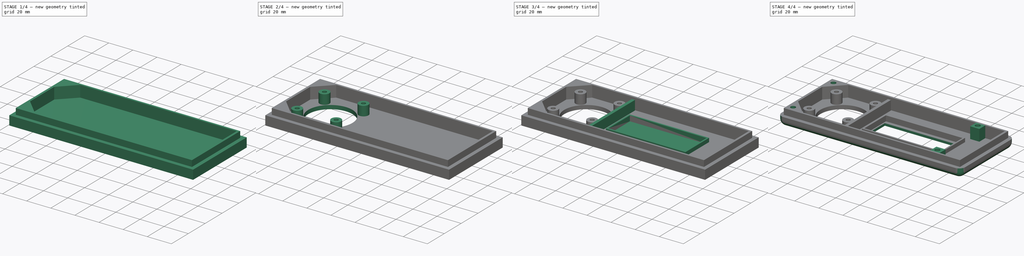
[diagram: build sequence overview — one tinted view per stage of 4, left to right]
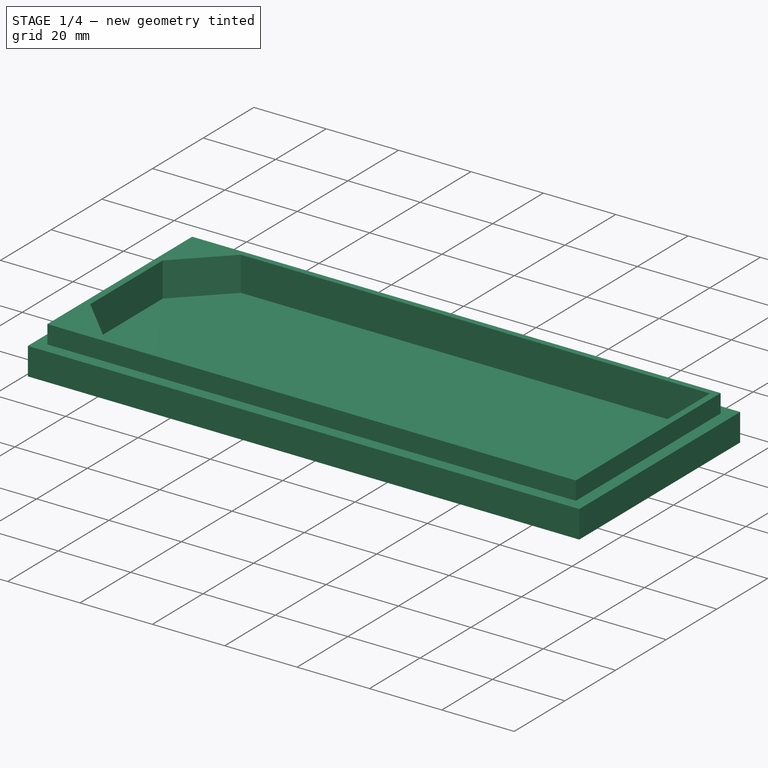
[diagram: stage 1 of 4 — iso view after this stage's code; geometry added in this stage tinted green]
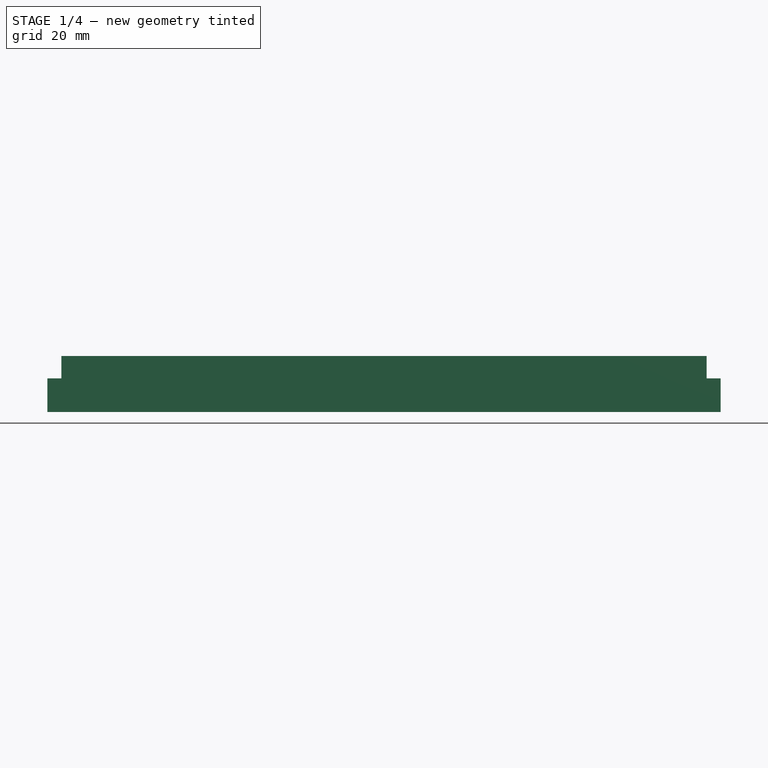
[diagram: stage 1 of 4 — front view after this stage's code; geometry added in this stage tinted green]
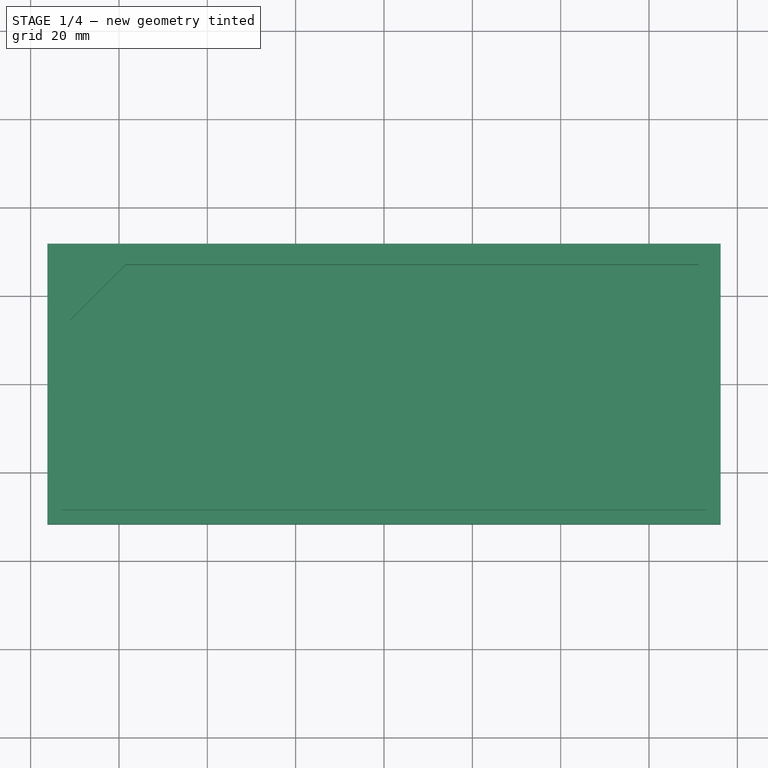
[diagram: stage 1 of 4 — top view after this stage's code; geometry added in this stage tinted green]
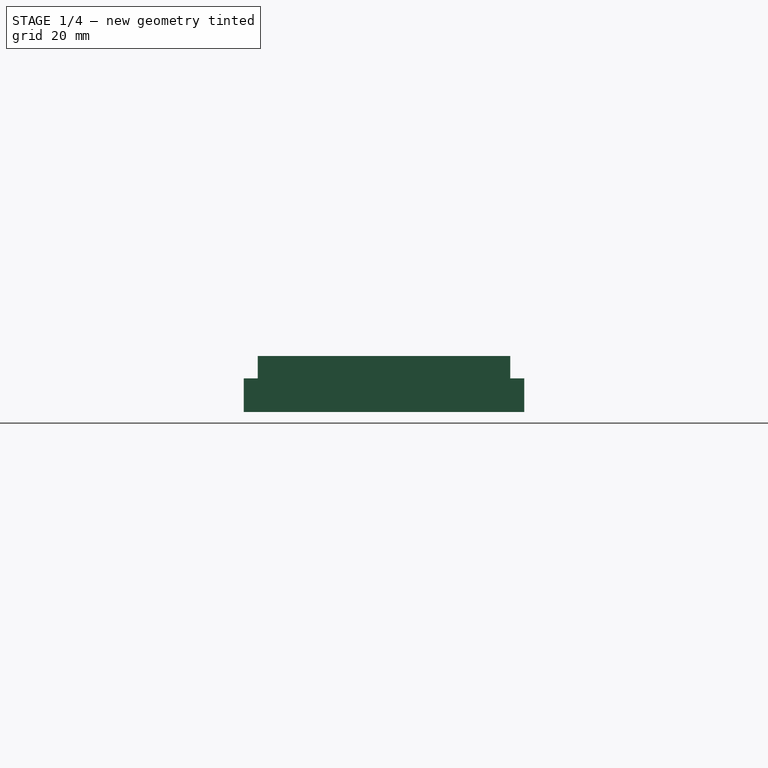
[diagram: stage 1 of 4 — right view after this stage's code; geometry added in this stage tinted green]
FCSTD DOCUMENT  (FreeCAD 1.0R39109 (Git))
Label: top
License: All rights reserved
LicenseURL: https://en.wikipedia.org/wiki/All_rights_reserved
objects: Sketcher::SketchObject×12, PartDesign::Pad×6, PartDesign::Pocket×4, PartDesign::Hole×2, PartDesign::Chamfer×1, PartDesign::Fillet×1, PartDesign::Body×1
note: 67 computed .brp shape members not serialized (recipe doc carries the construction recipe); baked Part::Feature solids carry a one-line shape summary decoded from their .brp

FEATURE [Sketcher::SketchObject] Sketch
  ArcFitTolerance = 1e-06
  AttachmentSupport = -> [XY_Plane]
  FullyConstrained = true
  MakeInternals = false
  MapMode = 5
  sketch-geometry (4):
    g0: LineSegment StartX=-76.2 StartY=31.75 StartZ=0 EndX=-76.2 EndY=-31.75 EndZ=0
    g1: LineSegment StartX=-76.2 StartY=-31.75 StartZ=0 EndX=76.2 EndY=-31.75 EndZ=0
    g2: LineSegment StartX=76.2 StartY=-31.75 StartZ=0 EndX=76.2 EndY=31.75 EndZ=0
    g3: LineSegment StartX=76.2 StartY=31.75 StartZ=0 EndX=-76.2 EndY=31.75 EndZ=0
  constraints (11):
    c: Coincident(g0,g1)
    c: Coincident(g1,g2)
    c: Coincident(g2,g3)
    c: Coincident(g3,g0)
    c: Vertical(g0)
    c: Vertical(g2)
    c: Horizontal(g1)
    c: Horizontal(g3)
    c: Distance(g0,g2) = 152.4
    c: Distance(g1,g3) = 63.5
    c: Symmetric(g0,g2,g-1)
FEATURE [PartDesign::Pad] Pad  label="Main Body"
  Direction = (0,0,1)
  Length = 7.62
  Length2 = 10
  Profile = -> Sketch
  ReferenceAxis = -> Sketch [N_Axis]
  Refine = true
  Suppressed = false
  Type = 0
FEATURE [Sketcher::SketchObject] Sketch001
  ArcFitTolerance = 1e-06
  AttachmentSupport = -> [XY_Plane]
  FullyConstrained = true
  MakeInternals = false
  MapMode = 5
  sketch-geometry (4):
    g0: LineSegment StartX=-73.025 StartY=28.575 StartZ=0 EndX=-73.025 EndY=-28.575 EndZ=0
    g1: LineSegment StartX=-73.025 StartY=-28.575 StartZ=0 EndX=73.025 EndY=-28.575 EndZ=0
    g2: LineSegment StartX=73.025 StartY=-28.575 StartZ=0 EndX=73.025 EndY=28.575 EndZ=0
    g3: LineSegment StartX=73.025 StartY=28.575 StartZ=0 EndX=-73.025 EndY=28.575 EndZ=0
  constraints (11):
    c: Coincident(g0,g1)
    c: Coincident(g1,g2)
    c: Coincident(g2,g3)
    c: Coincident(g3,g0)
    c: Vertical(g0)
    c: Vertical(g2)
    c: Horizontal(g1)
    c: Horizontal(g3)
    c: Distance(g3,g3) = 146.05
    c: Distance(g0,g0) = 57.15
    c: Symmetric(g0,g1,g-1)
FEATURE [PartDesign::Pad] Pad001  label="Lip"
  BaseFeature = -> Pad
  Direction = (0,0,1)
  Length = 12.7
  Length2 = 10
  Profile = -> Sketch001
  ReferenceAxis = -> Sketch001 [N_Axis]
  Refine = true
  Suppressed = false
  Type = 0
FEATURE [Sketcher::SketchObject] Sketch002
  ArcFitTolerance = 1e-06
  AttachmentOffset = pos=(0,0,12.7) rot=(0,0,1;0rad)
  AttachmentSupport = -> [XY_Plane]
  FullyConstrained = true
  MakeInternals = false
  MapMode = 5
  Placement = pos=(0,0,12.7) rot=(0,0,1;0rad)
  sketch-geometry (4):
    g0: LineSegment StartX=-71.1835 StartY=26.9875 StartZ=0 EndX=-71.1835 EndY=-26.9875 EndZ=0
    g1: LineSegment StartX=-71.1835 StartY=-26.9875 StartZ=0 EndX=71.1835 EndY=-26.9875 EndZ=0
    g2: LineSegment StartX=71.1835 StartY=-26.9875 StartZ=0 EndX=71.1835 EndY=26.9875 EndZ=0
    g3: LineSegment StartX=71.1835 StartY=26.9875 StartZ=0 EndX=-71.1835 EndY=26.9875 EndZ=0
  constraints (11):
    c: Coincident(g0,g1)
    c: Coincident(g1,g2)
    c: Coincident(g2,g3)
    c: Coincident(g3,g0)
    c: Vertical(g0)
    c: Vertical(g2)
    c: Horizontal(g1)
    c: Horizontal(g3)
    c: Distance(g0,g2) = 142.367
    c: Distance(g1,g3) = 53.975
    c: Symmetric(g0,g1,g-1)
FEATURE [PartDesign::Pocket] Pocket  label="Main Pocket"
  BaseFeature = -> Pad001
  Direction = (0,0,-1)
  Length = 9.525
  Length2 = 5
  Profile = -> Sketch002
  ReferenceAxis = -> Sketch002 [N_Axis]
  Refine = true
  Suppressed = false
  Type = 0
FEATURE [PartDesign::Chamfer] Chamfer
  Angle = 45
  Base = -> Pocket [Edge29,Edge30]
  BaseFeature = -> Pocket
  ChamferType = 0
  FlipDirection = false
  Refine = true
  Size = 12.7
  Size2 = 1
  SupportTransform = false
  Suppressed = false
  UseAllEdges = false
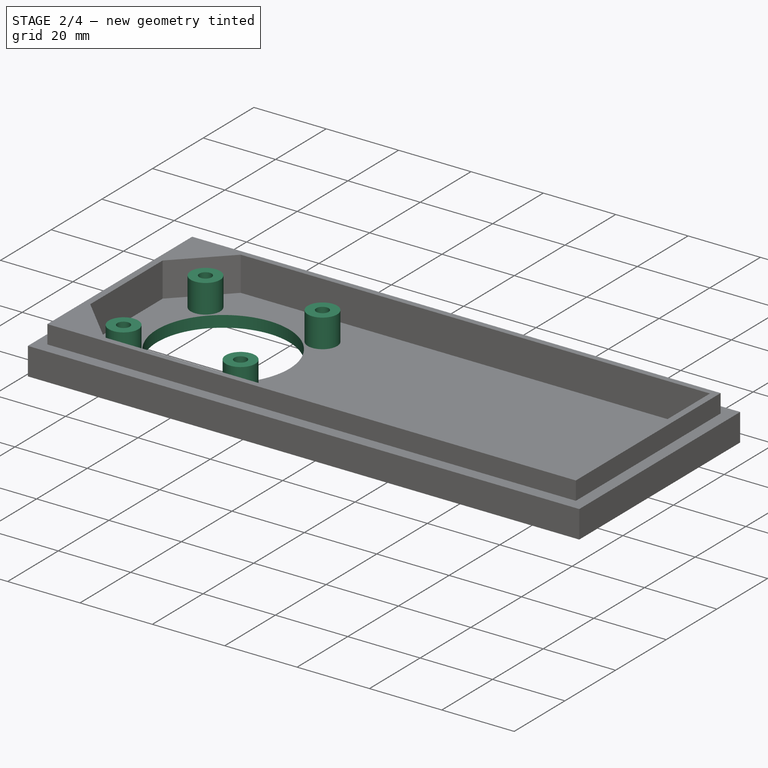
[diagram: stage 2 of 4 — iso view after this stage's code; geometry added in this stage tinted green]
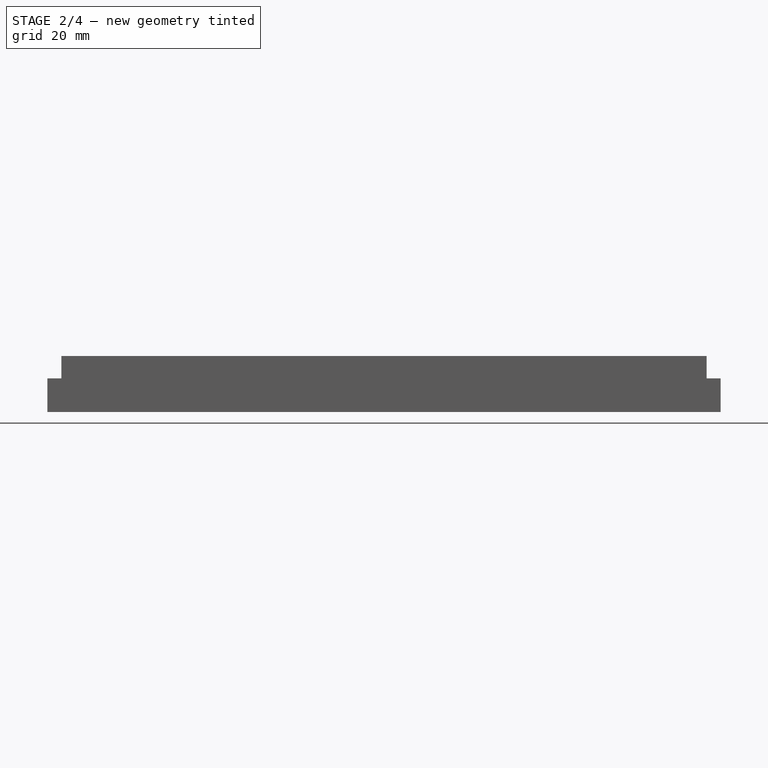
[diagram: stage 2 of 4 — front view after this stage's code; geometry added in this stage tinted green]
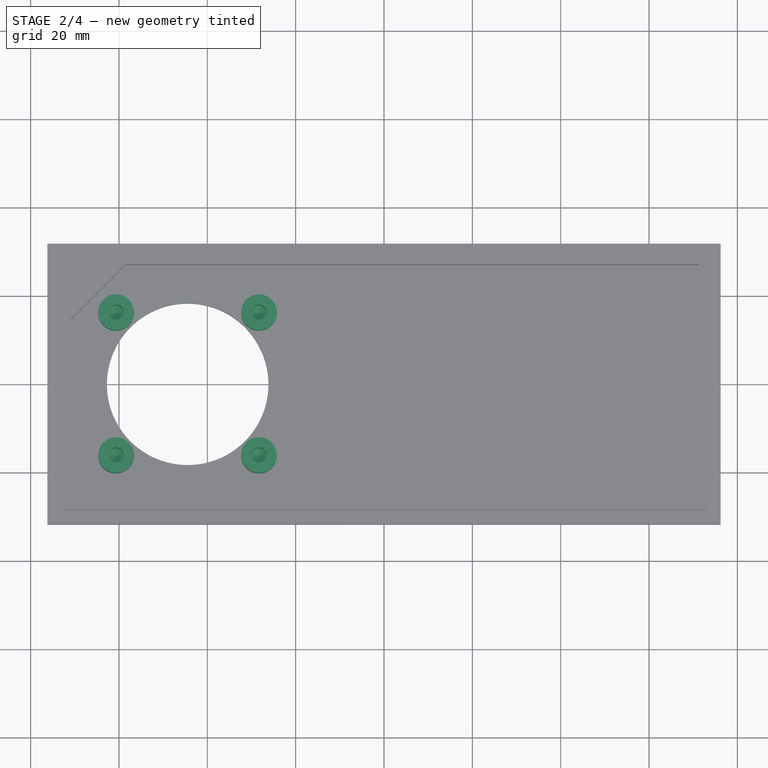
[diagram: stage 2 of 4 — top view after this stage's code; geometry added in this stage tinted green]
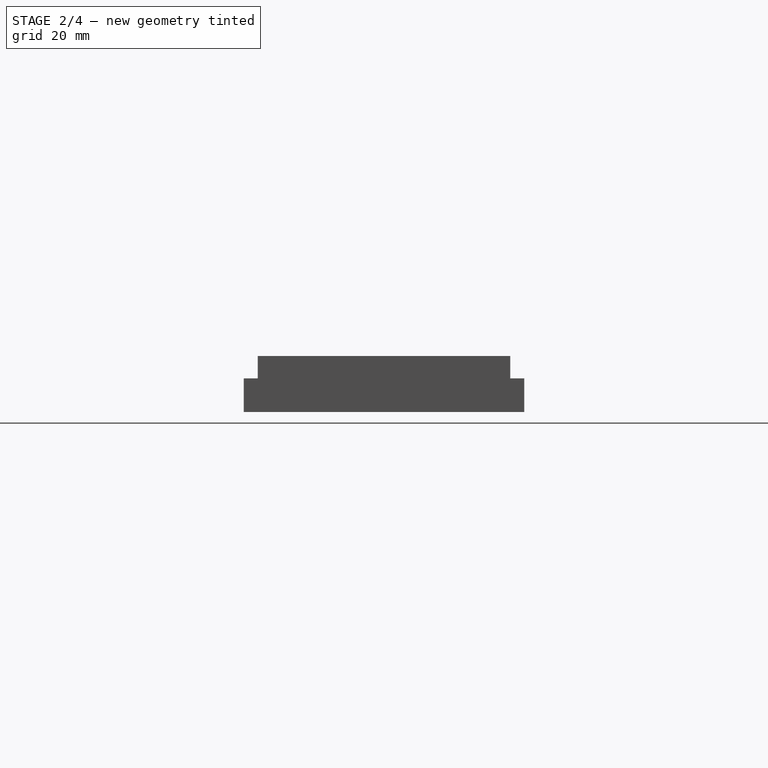
[diagram: stage 2 of 4 — right view after this stage's code; geometry added in this stage tinted green]
FEATURE [Sketcher::SketchObject] Sketch003  label="Button Hole001"
  ArcFitTolerance = 1e-06
  AttachmentOffset = pos=(0,0,25.4) rot=(0,0,1;0rad)
  AttachmentSupport = -> [XY_Plane]
  FullyConstrained = true
  MakeInternals = false
  MapMode = 5
  Placement = pos=(0,0,25.4) rot=(0,0,1;0rad)
  sketch-geometry (1):
    g0: Circle CenterX=-44.45 CenterY=0 CenterZ=0 NormalX=0 NormalY=0 NormalZ=1 AngleXU=0 Radius=18.288
  constraints (3):
    c: DistanceX(g0,g-1) = 44.45
    c: Diameter(g0) = 36.576
    c: DistanceY(g0,g-1) = 0
FEATURE [PartDesign::Pocket] Pocket001  label="Button Hole"
  BaseFeature = -> Chamfer
  Direction = (0,0,-1)
  Length = 5
  Length2 = 5
  Profile = -> Sketch003
  ReferenceAxis = -> Sketch003 [N_Axis]
  Refine = true
  Suppressed = false
  Type = 1
FEATURE [Sketcher::SketchObject] Sketch004
  ArcFitTolerance = 1e-06
  AttachmentSupport = -> [XY_Plane]
  FullyConstrained = true
  MakeInternals = false
  MapMode = 5
  sketch-geometry (4):
    g0: Circle CenterX=-60.6552 CenterY=-16.1671 CenterZ=0 NormalX=0 NormalY=0 NormalZ=1 AngleXU=0 Radius=4.064
    g1: Circle CenterX=-28.321 CenterY=-16.1671 CenterZ=0 NormalX=0 NormalY=0 NormalZ=1 AngleXU=0 Radius=4.064
    g2: Circle CenterX=-28.321 CenterY=16.1671 CenterZ=0 NormalX=0 NormalY=0 NormalZ=1 AngleXU=0 Radius=4.064
    g3: Circle CenterX=-60.6552 CenterY=16.1671 CenterZ=0 NormalX=0 NormalY=0 NormalZ=1 AngleXU=0 Radius=4.064
  constraints (12):
    c: Diameter(g3) = 8.128
    c: Diameter(g0) = 8.128
    c: Diameter(g1) = 8.128
    c: Diameter(g2) = 8.128
    c: DistanceX(g0,g1) = 32.3342
    c: DistanceX(g3,g2) = 32.3342
    c: DistanceX(g3,g0) = 0
    c: DistanceY(g0,g3) = 32.3342
    c: DistanceY(g1,g0) = 0
    c: DistanceY(g1,g2) = 32.3342
    c: DistanceY(g1,g-1) = 16.1671
    c: DistanceX(g1,g-1) = 28.321
FEATURE [PartDesign::Pad] Pad002  label="Button Standoffs"
  BaseFeature = -> Pocket001
  Direction = (0,0,1)
  Length = 11.0744
  Length2 = 10
  Profile = -> Sketch004
  ReferenceAxis = -> Sketch004 [N_Axis]
  Refine = true
  Suppressed = false
  Type = 0
FEATURE [Sketcher::SketchObject] Sketch006
  ArcFitTolerance = 1e-06
  AttachmentSupport = -> [XY_Plane]
  FullyConstrained = true
  MakeInternals = false
  MapMode = 5
  sketch-geometry (4):
    g0: LineSegment StartX=-22.86 StartY=26.67 StartZ=0 EndX=-22.86 EndY=-26.67 EndZ=0
    g1: LineSegment StartX=-22.86 StartY=-26.67 StartZ=0 EndX=-25.4 EndY=-26.67 EndZ=0
    g2: LineSegment StartX=-25.4 StartY=-26.67 StartZ=0 EndX=-25.4 EndY=26.67 EndZ=0
    g3: LineSegment StartX=-25.4 StartY=26.67 StartZ=0 EndX=-22.86 EndY=26.67 EndZ=0
  constraints (12):
    c: Coincident(g0,g1)
    c: Coincident(g1,g2)
    c: Coincident(g2,g3)
    c: Coincident(g3,g0)
    c: Vertical(g0)
    c: Vertical(g2)
    c: Horizontal(g1)
    c: Horizontal(g3)
    c: Distance(g1,g1) = 2.54
    c: Distance(g0,g0) = 53.34
    c: DistanceY(g1,g-1) = 26.67
    c: DistanceX(g1,g-1) = 25.4
FEATURE [Sketcher::SketchObject] Sketch008
  ArcFitTolerance = 1e-06
  AttachmentSupport = -> [XY_Plane]
  FullyConstrained = true
  MakeInternals = false
  MapMode = 5
  sketch-geometry (4):
    g0: LineSegment StartX=-18.542 StartY=-13.97 StartZ=0 EndX=47.498 EndY=-13.97 EndZ=0
    g1: LineSegment StartX=47.498 StartY=-13.97 StartZ=0 EndX=47.498 EndY=13.97 EndZ=0
    g2: LineSegment StartX=47.498 StartY=13.97 StartZ=0 EndX=-18.542 EndY=13.97 EndZ=0
    g3: LineSegment StartX=-18.542 StartY=13.97 StartZ=0 EndX=-18.542 EndY=-13.97 EndZ=0
  constraints (12):
    c: Coincident(g0,g1)
    c: Coincident(g1,g2)
    c: Coincident(g2,g3)
    c: Coincident(g3,g0)
    c: Horizontal(g0)
    c: Horizontal(g2)
    c: Vertical(g1)
    c: Vertical(g3)
    c: Distance(g0,g0) = 66.04
    c: Distance(g1,g1) = 27.94
    c: DistanceY(g0,g-1) = 13.97
    c: DistanceX(g-1,g0) = 47.498
FEATURE [Sketcher::SketchObject] Sketch009
  ArcFitTolerance = 1e-06
  AttachmentOffset = pos=(0,0,6.35) rot=(0,0,1;0rad)
  AttachmentSupport = -> [XY_Plane]
  FullyConstrained = true
  MakeInternals = false
  MapMode = 5
  Placement = pos=(0,0,6.35) rot=(0,0,1;0rad)
  sketch-geometry (4):
    g0: LineSegment StartX=-17.272 StartY=-12.7 StartZ=0 EndX=46.228 EndY=-12.7 EndZ=0
    g1: LineSegment StartX=46.228 StartY=-12.7 StartZ=0 EndX=46.228 EndY=12.7 EndZ=0
    g2: LineSegment StartX=46.228 StartY=12.7 StartZ=0 EndX=-17.272 EndY=12.7 EndZ=0
    g3: LineSegment StartX=-17.272 StartY=12.7 StartZ=0 EndX=-17.272 EndY=-12.7 EndZ=0
  constraints (12):
    c: Coincident(g0,g1)
    c: Coincident(g1,g2)
    c: Coincident(g2,g3)
    c: Coincident(g3,g0)
    c: Horizontal(g0)
    c: Horizontal(g2)
    c: Vertical(g1)
    c: Vertical(g3)
    c: Distance(g0,g0) = 63.5
    c: Distance(g1,g1) = 25.4
    c: DistanceY(g0,g-1) = 12.7
    c: DistanceX(g-1,g0) = 46.228
FEATURE [Sketcher::SketchObject] Sketch005
  ArcFitTolerance = 1e-06
  AttachmentOffset = pos=(0,0,12.7) rot=(0,0,1;0rad)
  AttachmentSupport = -> [XY_Plane]
  FullyConstrained = true
  MakeInternals = false
  MapMode = 5
  Placement = pos=(0,0,12.7) rot=(0,0,1;0rad)
  sketch-geometry (4):
    g0: Circle CenterX=-60.6552 CenterY=-16.1671 CenterZ=0 NormalX=0 NormalY=0 NormalZ=1 AngleXU=0 Radius=1.27
    g1: Circle CenterX=-28.321 CenterY=-16.1671 CenterZ=0 NormalX=0 NormalY=0 NormalZ=1 AngleXU=0 Radius=1.27
    g2: Circle CenterX=-28.321 CenterY=16.1671 CenterZ=0 NormalX=0 NormalY=0 NormalZ=1 AngleXU=0 Radius=1.27
    g3: Circle CenterX=-60.6552 CenterY=16.1671 CenterZ=0 NormalX=0 NormalY=0 NormalZ=1 AngleXU=0 Radius=1.27
  constraints (12):
    c: Diameter(g0) = 2.54
    c: Diameter(g1) = 2.54
    c: Diameter(g2) = 2.54
    c: Diameter(g3) = 2.54
    c: DistanceX(g0,g1) = 32.3342
    c: DistanceX(g3,g2) = 32.3342
    c: DistanceX(g0,g3) = 0
    c: DistanceY(g0,g3) = 32.3342
    c: DistanceY(g1,g2) = 32.3342
    c: DistanceY(g1,g0) = 0
    c: DistanceY(g1,g-1) = 16.1671
    c: DistanceX(g1,g-1) = 28.321
FEATURE [PartDesign::Hole] Hole  label="Button Screw holes"
  BaseFeature = -> Pad002
  CustomThreadClearance = 0
  Depth = 10.16
  DepthType = 0
  Diameter = 3.429
  DrillForDepth = false
  DrillPoint = 1
  DrillPointAngle = 118
  HoleCutCountersinkAngle = 90
  HoleCutCustomValues = false
  HoleCutDepth = 0
  HoleCutDiameter = 0
  HoleCutType = 0
  ModelThread = false
  Profile = -> Sketch005
  Refine = true
  Suppressed = false
  Tapered = false
  TaperedAngle = 90
  ThreadClass = 0
  ThreadDepth = 10.16
  ThreadDepthType = 0
  ThreadDirection = 0
  ThreadFit = 0
  ThreadSize = 0
  ThreadType = 0
  Threaded = false
  UseCustomThreadClearance = false
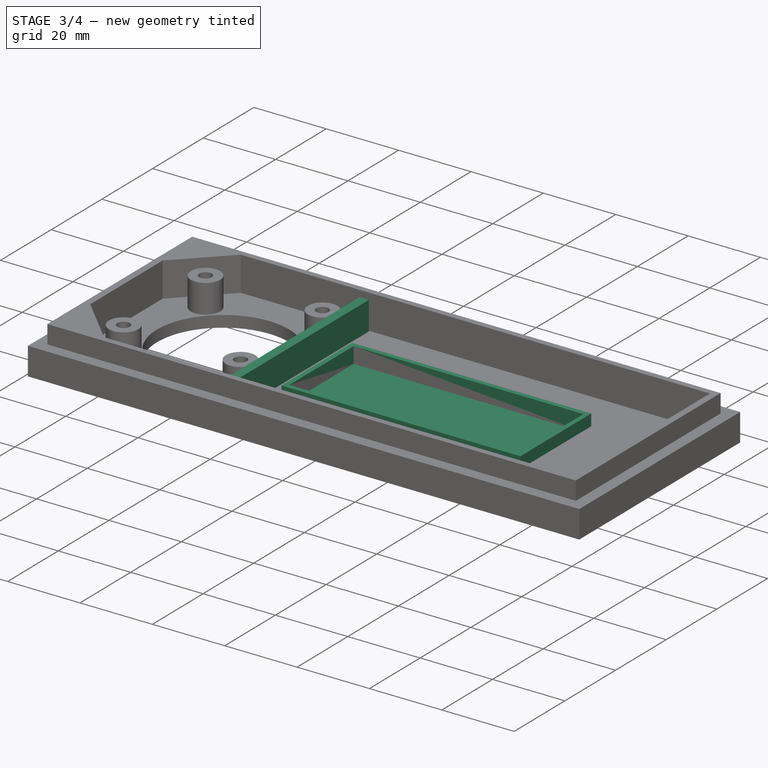
[diagram: stage 3 of 4 — iso view after this stage's code; geometry added in this stage tinted green]
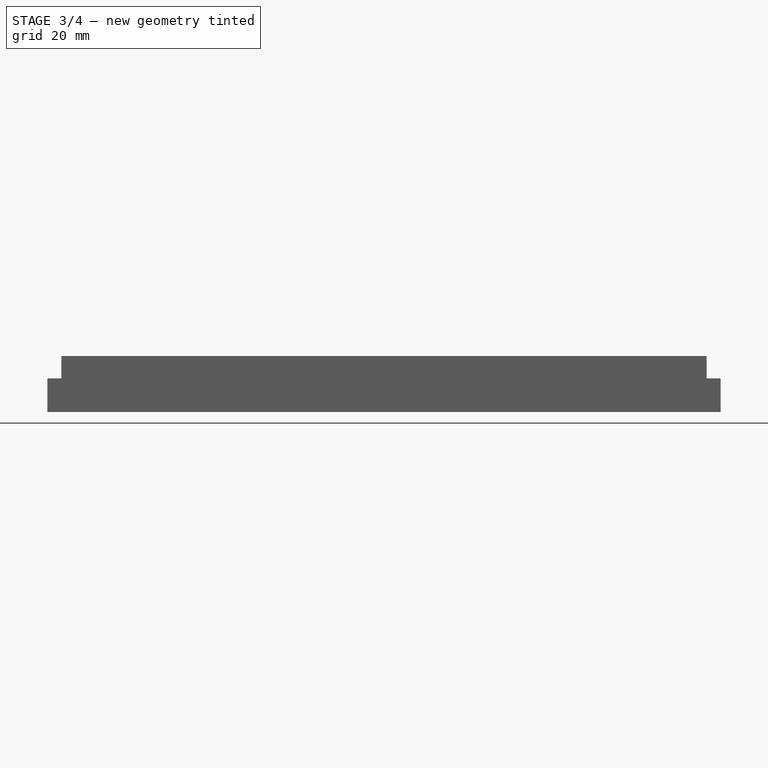
[diagram: stage 3 of 4 — front view after this stage's code; geometry added in this stage tinted green]
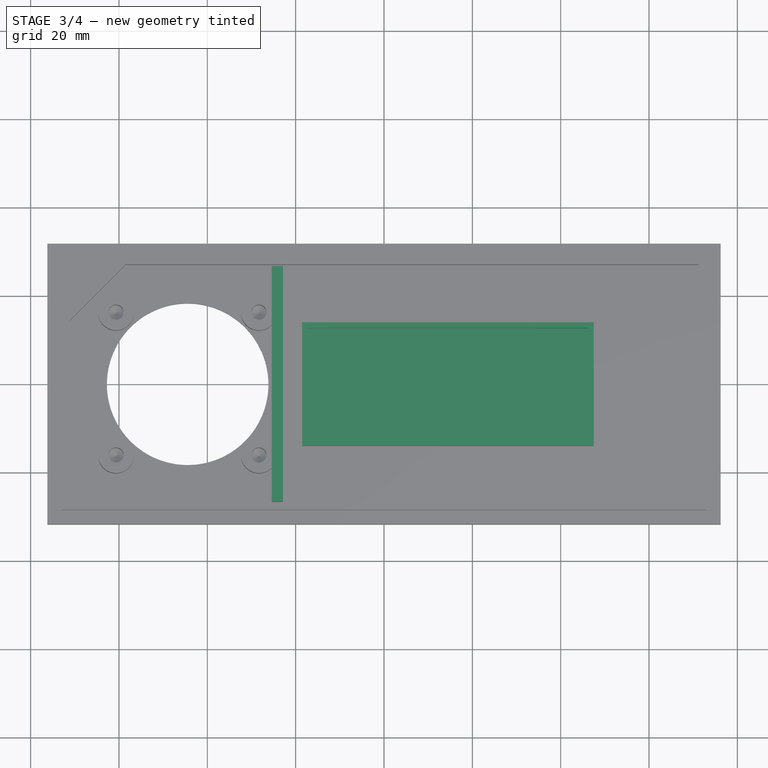
[diagram: stage 3 of 4 — top view after this stage's code; geometry added in this stage tinted green]
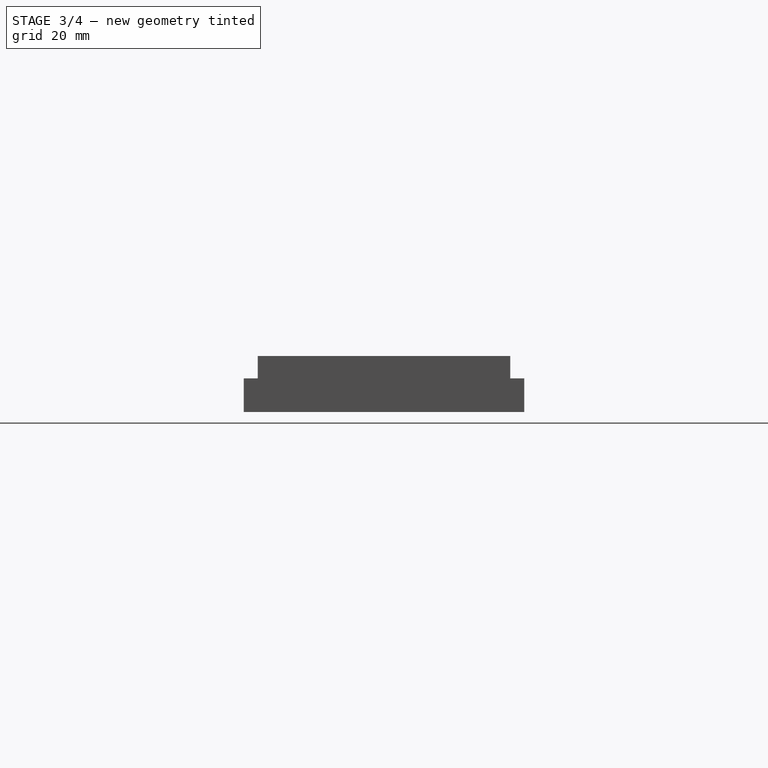
[diagram: stage 3 of 4 — right view after this stage's code; geometry added in this stage tinted green]
FEATURE [PartDesign::Pad] Pad003  label="Light Baffle"
  BaseFeature = -> Hole
  Direction = (0,0,1)
  Length = 11.0744
  Length2 = 10
  Profile = -> Sketch006
  ReferenceAxis = -> Sketch006 [N_Axis]
  Refine = true
  Suppressed = false
  Type = 0
FEATURE [PartDesign::Pad] Pad004  label="Red Plexi pad"
  BaseFeature = -> Pad003
  Direction = (0,0,1)
  Length = 6.35
  Length2 = 10
  Profile = -> Sketch008
  ReferenceAxis = -> Sketch008 [N_Axis]
  Refine = true
  Suppressed = false
  Type = 0
FEATURE [PartDesign::Pocket] Pocket003  label="Red Plexi pocket"
  BaseFeature = -> Pad004
  Direction = (0,0,-1)
  Length = 4.445
  Length2 = 5
  Profile = -> Sketch009
  ReferenceAxis = -> Sketch009 [N_Axis]
  Refine = true
  Suppressed = false
  Type = 0
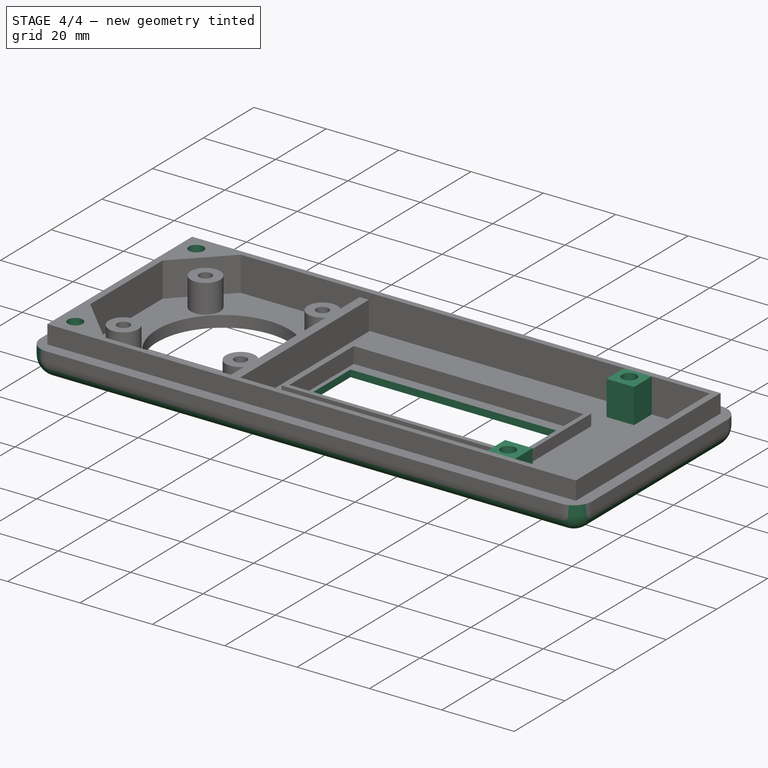
[diagram: stage 4 of 4 — iso view after this stage's code; geometry added in this stage tinted green]
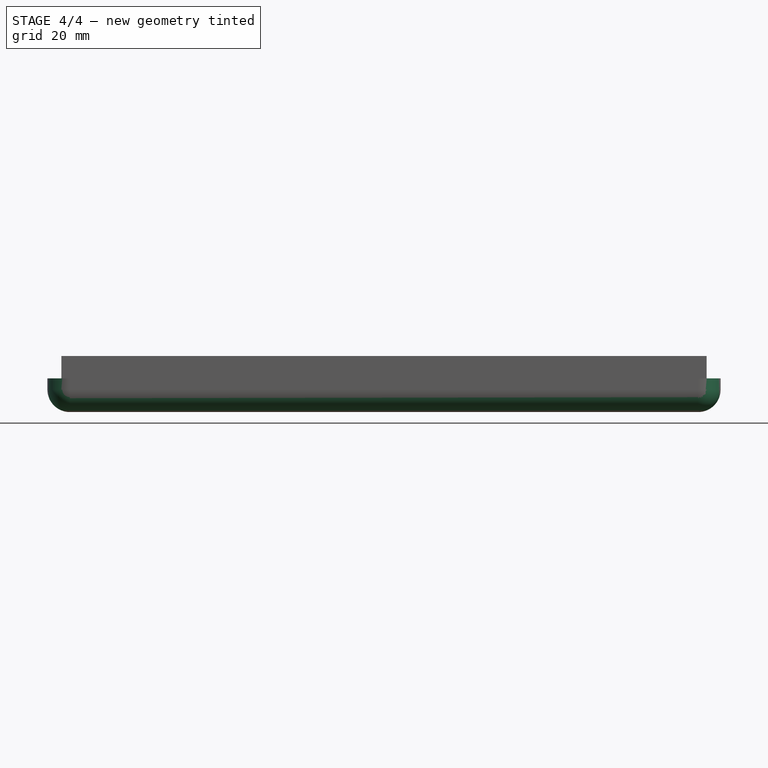
[diagram: stage 4 of 4 — front view after this stage's code; geometry added in this stage tinted green]
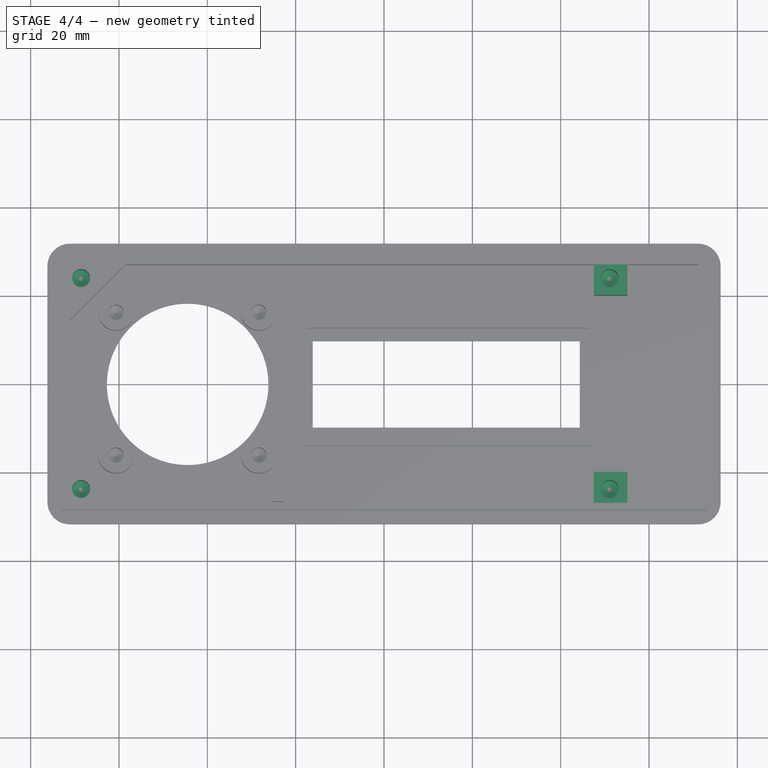
[diagram: stage 4 of 4 — top view after this stage's code; geometry added in this stage tinted green]
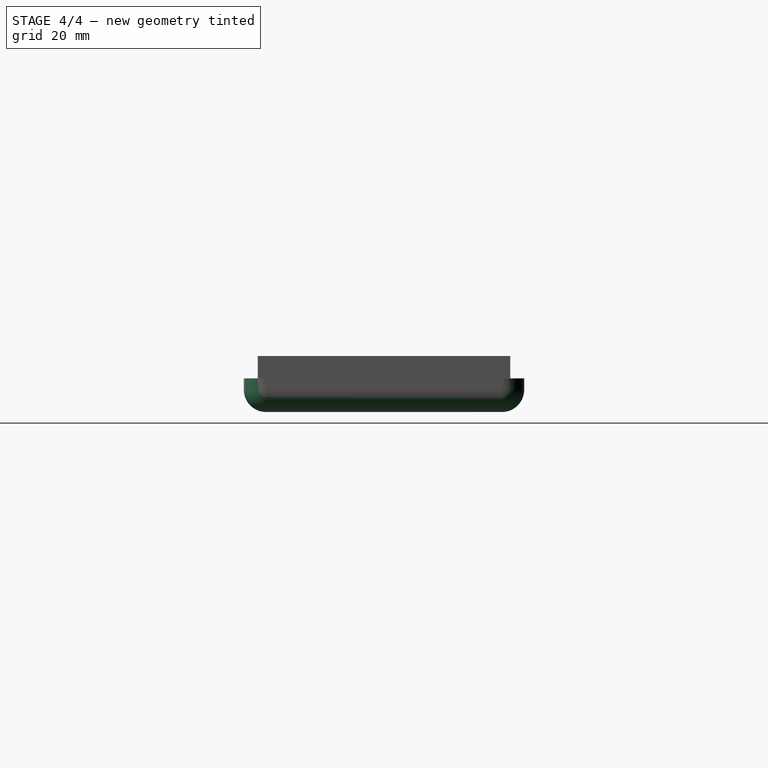
[diagram: stage 4 of 4 — right view after this stage's code; geometry added in this stage tinted green]
FEATURE [Sketcher::SketchObject] Sketch010
  ArcFitTolerance = 1e-06
  AttachmentOffset = pos=(0,0,12.7) rot=(0,0,1;0rad)
  AttachmentSupport = -> [XY_Plane]
  FullyConstrained = true
  MakeInternals = false
  MapMode = 5
  Placement = pos=(0,0,12.7) rot=(0,0,1;0rad)
  sketch-geometry (4):
    g0: LineSegment StartX=-16.129 StartY=-9.8044 StartZ=0 EndX=44.323 EndY=-9.8044 EndZ=0
    g1: LineSegment StartX=44.323 StartY=-9.8044 StartZ=0 EndX=44.323 EndY=9.8044 EndZ=0
    g2: LineSegment StartX=44.323 StartY=9.8044 StartZ=0 EndX=-16.129 EndY=9.8044 EndZ=0
    g3: LineSegment StartX=-16.129 StartY=9.8044 StartZ=0 EndX=-16.129 EndY=-9.8044 EndZ=0
  constraints (12):
    c: Coincident(g0,g1)
    c: Coincident(g1,g2)
    c: Coincident(g2,g3)
    c: Coincident(g3,g0)
    c: Horizontal(g0)
    c: Horizontal(g2)
    c: Vertical(g1)
    c: Vertical(g3)
    c: Distance(g3,g3) = 19.6088
    c: Distance(g0,g0) = 60.452
    c: DistanceY(g0,g-1) = 9.8044
    c: DistanceX(g-1,g0) = 44.323
FEATURE [PartDesign::Pocket] Pocket004  label="Window"
  BaseFeature = -> Pocket003
  Direction = (0,0,-1)
  Length = 5
  Length2 = 5
  Profile = -> Sketch010
  ReferenceAxis = -> Sketch010 [N_Axis]
  Refine = true
  Suppressed = false
  Type = 1
FEATURE [Sketcher::SketchObject] Sketch011
  ArcFitTolerance = 1e-06
  AttachmentSupport = -> [XY_Plane]
  FullyConstrained = true
  MakeInternals = false
  MapMode = 5
  sketch-geometry (8):
    g0: LineSegment StartX=47.4726 StartY=27.6225 StartZ=0 EndX=47.4726 EndY=20.0025 EndZ=0
    g1: LineSegment StartX=47.4726 StartY=20.0025 StartZ=0 EndX=55.0926 EndY=20.0025 EndZ=0
    g2: LineSegment StartX=55.0926 StartY=20.0025 StartZ=0 EndX=55.0926 EndY=27.6225 EndZ=0
    g3: LineSegment StartX=55.0926 StartY=27.6225 StartZ=0 EndX=47.4726 EndY=27.6225 EndZ=0
    g4: LineSegment StartX=47.4726 StartY=-20.0025 StartZ=0 EndX=47.4726 EndY=-27.6225 EndZ=0
    g5: LineSegment StartX=47.4726 StartY=-27.6225 StartZ=0 EndX=55.0926 EndY=-27.6225 EndZ=0
    g6: LineSegment StartX=55.0926 StartY=-27.6225 StartZ=0 EndX=55.0926 EndY=-20.0025 EndZ=0
    g7: LineSegment StartX=55.0926 StartY=-20.0025 StartZ=0 EndX=47.4726 EndY=-20.0025 EndZ=0
  constraints (24):
    c: Coincident(g0,g1)
    c: Coincident(g1,g2)
    c: Coincident(g2,g3)
    c: Coincident(g3,g0)
    c: Vertical(g0)
    c: Vertical(g2)
    c: Horizontal(g1)
    c: Horizontal(g3)
    c: Coincident(g4,g5)
    c: Coincident(g5,g6)
    c: Coincident(g6,g7)
    c: Coincident(g7,g4)
    c: Vertical(g4)
    c: Vertical(g6)
    c: Horizontal(g5)
    c: Horizontal(g7)
    c: Distance(g5,g5) = 7.62
    c: DistanceY(g6,g6) = 7.62
    c: Distance(g1,g1) = 7.62
    c: DistanceY(g2,g2) = 7.62
    c: DistanceX(g-1,g0) = 47.4726
    c: DistanceX(g-1,g4) = 47.4726
    c: DistanceY(g-1,g0) = 20.0025
    c: DistanceY(g4,g-1) = 20.0025
FEATURE [PartDesign::Pad] Pad005  label="Case Screw Piller"
  BaseFeature = -> Pocket004
  Direction = (0,0,1)
  Length = 12.7
  Length2 = 10
  Profile = -> Sketch011
  ReferenceAxis = -> Sketch011 [N_Axis]
  Refine = true
  Suppressed = false
  Type = 0
FEATURE [Sketcher::SketchObject] Sketch012
  ArcFitTolerance = 1e-06
  AttachmentOffset = pos=(0,0,12.7) rot=(0,0,1;0rad)
  AttachmentSupport = -> [XY_Plane]
  FullyConstrained = true
  MakeInternals = false
  MapMode = 5
  Placement = pos=(0,0,12.7) rot=(0,0,1;0rad)
  sketch-geometry (4):
    g0: Circle CenterX=-68.58 CenterY=23.876 CenterZ=0 NormalX=0 NormalY=0 NormalZ=1 AngleXU=0 Radius=1.9812
    g1: Circle CenterX=-68.58 CenterY=-23.876 CenterZ=0 NormalX=0 NormalY=0 NormalZ=1 AngleXU=0 Radius=1.9812
    g2: Circle CenterX=51.054 CenterY=23.876 CenterZ=0 NormalX=0 NormalY=0 NormalZ=1 AngleXU=0 Radius=1.9812
    g3: Circle CenterX=51.054 CenterY=-23.876 CenterZ=0 NormalX=0 NormalY=0 NormalZ=1 AngleXU=0 Radius=1.9812
  constraints (12):
    c: Diameter(g0) = 3.9624
    c: Diameter(g1) = 3.9624
    c: Diameter(g2) = 3.9624
    c: Diameter(g3) = 3.9624
    c: DistanceY(g1,g3) = 0
    c: DistanceY(g2,g0) = 0
    c: DistanceY(g1,g-1) = 23.876
    c: DistanceY(g-1,g0) = 23.876
    c: DistanceX(g0,g1) = 0
    c: DistanceX(g3,g2) = 0
    c: DistanceX(g1,g-1) = 68.58
    c: DistanceX(g0,g2) = 119.634
FEATURE [PartDesign::Hole] Hole001  label="Case Screw inserts"
  BaseFeature = -> Pad005
  CustomThreadClearance = 0
  Depth = 11.43
  DepthType = 0
  Diameter = 4.064
  DrillForDepth = false
  DrillPoint = 1
  DrillPointAngle = 118
  HoleCutCountersinkAngle = 90
  HoleCutCustomValues = false
  HoleCutDepth = 0
  HoleCutDiameter = 4.064
  HoleCutType = 0
  ModelThread = false
  Profile = -> Sketch012
  Refine = true
  Suppressed = false
  Tapered = false
  TaperedAngle = 90
  ThreadClass = 0
  ThreadDepth = 11.43
  ThreadDepthType = 0
  ThreadDirection = 0
  ThreadFit = 0
  ThreadSize = 0
  ThreadType = 0
  Threaded = false
  UseCustomThreadClearance = false
FEATURE [PartDesign::Fillet] Fillet
  Base = -> Hole001 [Edge35,Edge39,Edge38,Edge37,Edge36,Edge41,Edge40,Edge42]
  BaseFeature = -> Hole001
  Radius = 5.08
  Refine = true
  SupportTransform = false
  Suppressed = false
  UseAllEdges = false
FEATURE [PartDesign::Body] Body
  AllowCompound = false
  Group = -> [Sketch,Pad,Sketch001,Pad001,Sketch002,Pocket,Chamfer,Sketch003,Pocket001,Sketch004,Pad002,Sketch005,Hole,Sketch006,Pad003,Sketch008,Pad004,Sketch009,Pocket003,Sketch010,Pocket004,Sketch011,Pad005,Sketch012,Hole001,Fillet]
  Origin = -> Origin
  Tip = -> Fillet
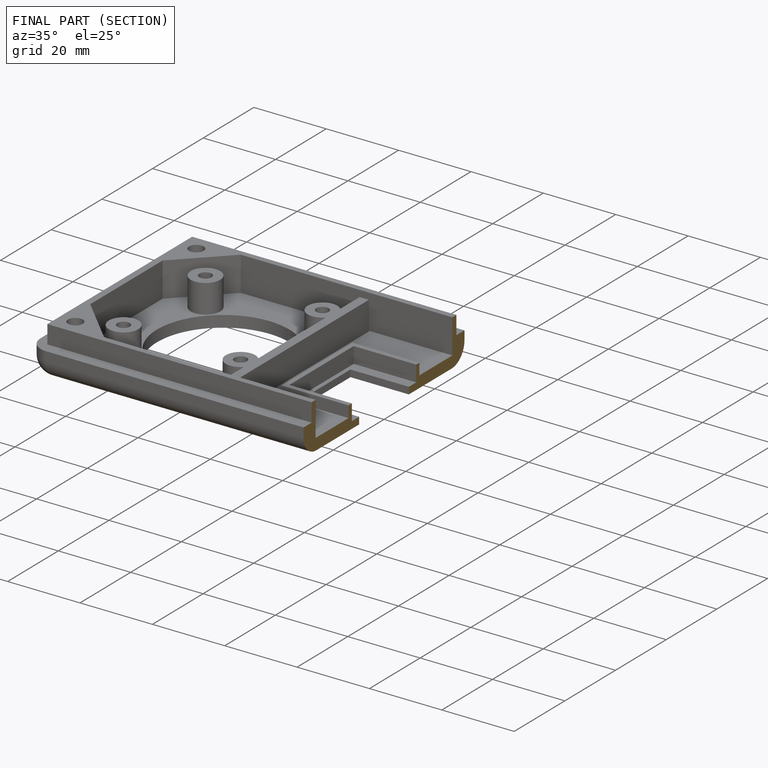
[diagram: finished part — half-section view (interior)]
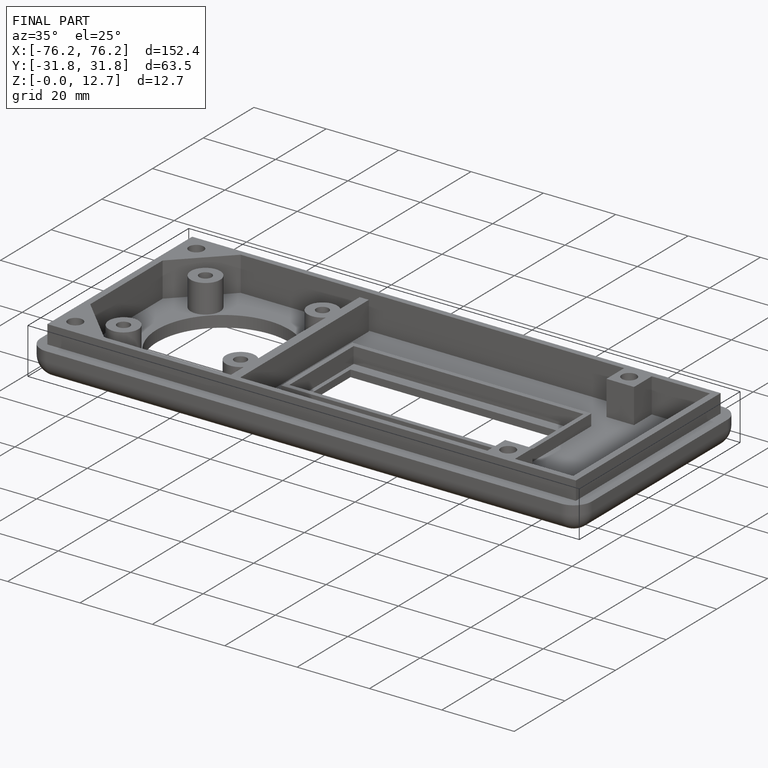
[diagram: finished part — iso view with bounding-box wireframe]
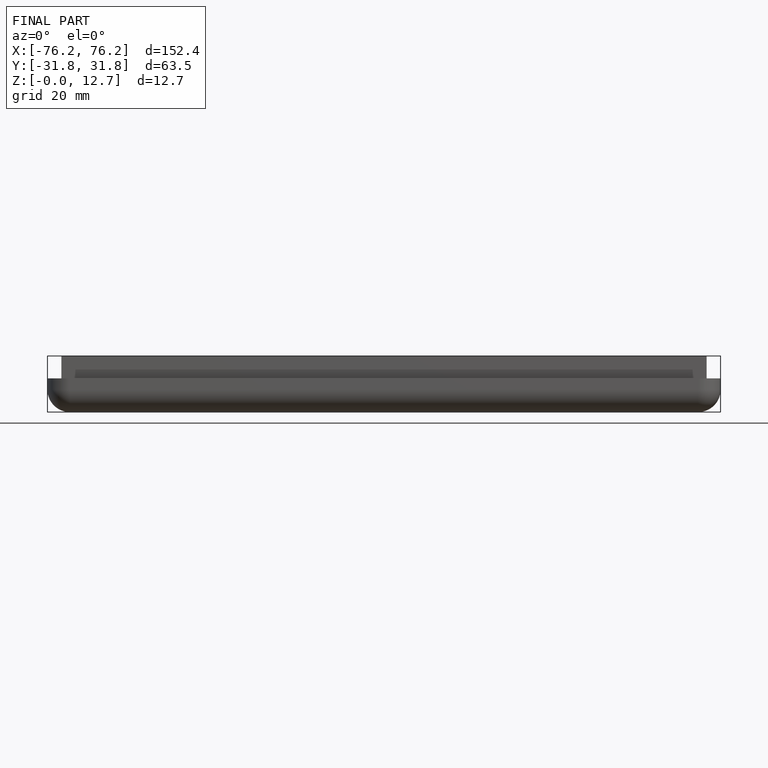
[diagram: finished part — front view with bounding-box wireframe]
